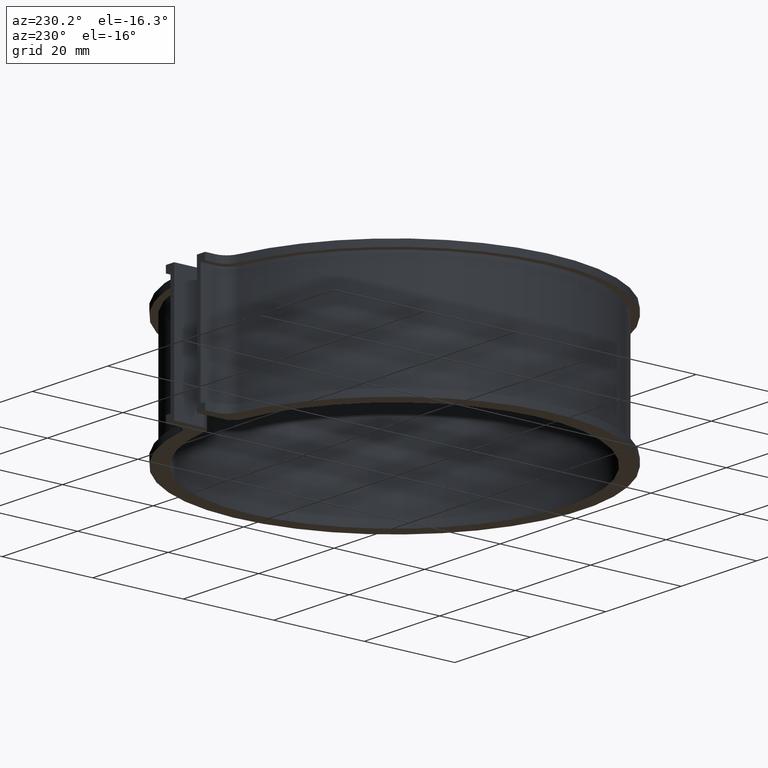
[diagram: clean part render]
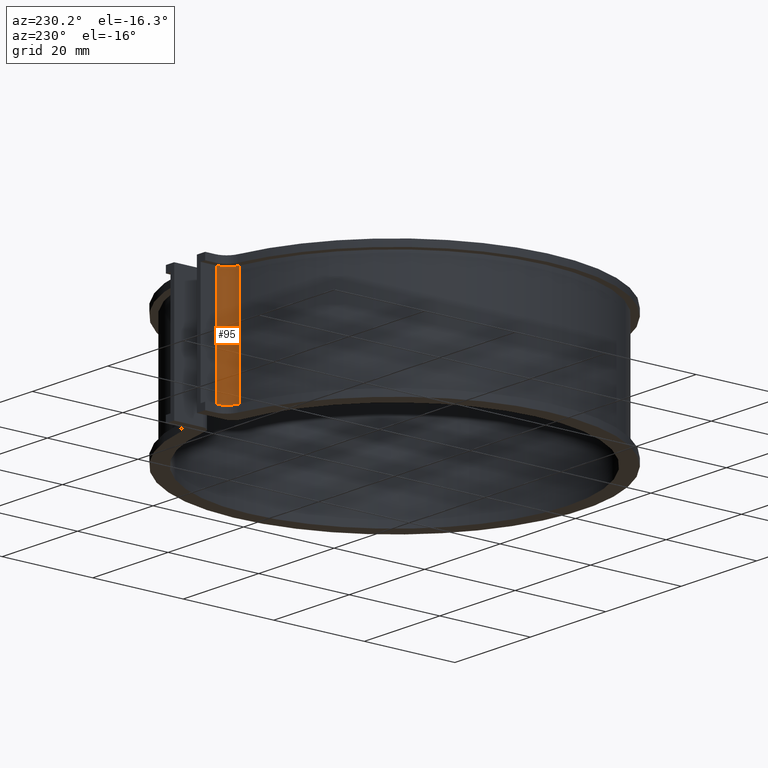
[diagram: same view with one face highlighted and labeled with its STEP entity id]
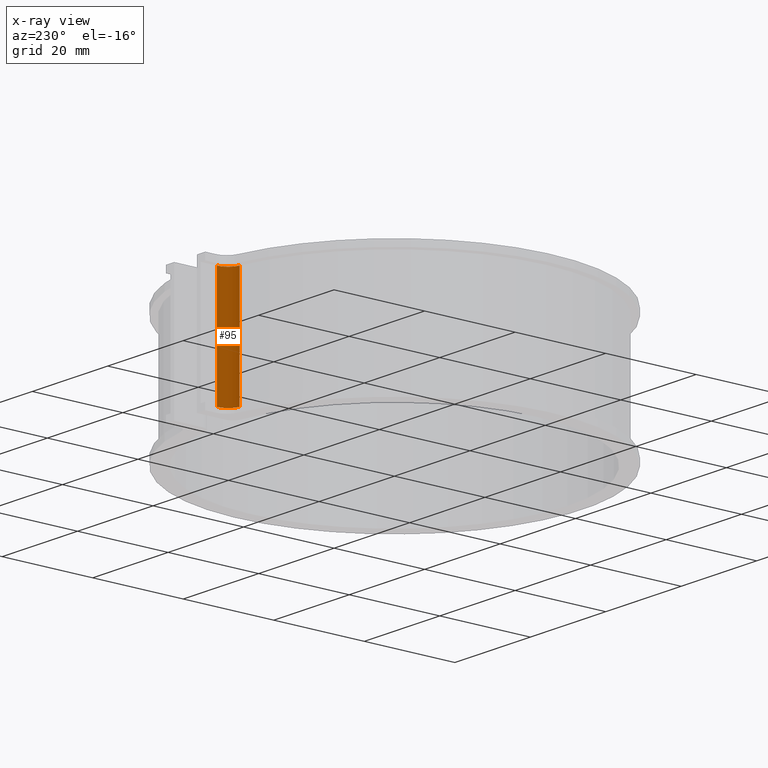
[diagram: x-ray of the same camera — body ghosted, the highlighted face saturated]
A machine part, auxiliary view. The second image highlights one B-rep face of the part: STEP entity #95.
The next image is the same camera in x-ray: the body ghosted, the highlighted face saturated — about 0% of this face is hidden behind the body in this view.
In plain terms, the highlighted cylindrical surface (edge-blend (fillet) strip) has radius 3 mm, axis along (0, 0, -1).
Its self-contained STEP definition (entity closure, byte-faithful):
#95 = ADVANCED_FACE( '', ( #142 ), #143, .F. );
#142 = FACE_OUTER_BOUND( '', #194, .T. );
#143 = CYLINDRICAL_SURFACE( '', #195, 3.00000000000000 );
#194 = EDGE_LOOP( '', ( #386, #387, #388, #389 ) );
#195 = AXIS2_PLACEMENT_3D( '', #390, #391, #392 );
#386 = ORIENTED_EDGE( '', *, *, #430, .F. );
#387 = ORIENTED_EDGE( '', *, *, #446, .T. );
#388 = ORIENTED_EDGE( '', *, *, #496, .T. );
#389 = ORIENTED_EDGE( '', *, *, #489, .F. );
#390 = CARTESIAN_POINT( '', ( -7.00000000000000, 42.5784276365391, -14.0000000000000 ) );
#391 = DIRECTION( '', ( 0.000000000000000, 0.000000000000000, -1.00000000000000 ) );
#392 = DIRECTION( '', ( 1.00000000000000, -6.07153216591882E-017, 0.000000000000000 ) );
#430 = EDGE_CURVE( '', #503, #505, #506, .T. );
#446 = EDGE_CURVE( '', #503, #534, #535, .T. );
#489 = EDGE_CURVE( '', #505, #606, #607, .T. );
#496 = EDGE_CURVE( '', #534, #606, #616, .T. );
#503 = VERTEX_POINT( '', #624 );
#505 = VERTEX_POINT( '', #627 );
#506 = LINE( '', #628, #629 );
#534 = VERTEX_POINT( '', #670 );
#535 = CIRCLE( '', #671, 3.00000000000000 );
#606 = VERTEX_POINT( '', #766 );
#607 = CIRCLE( '', #767, 3.00000000000000 );
#616 = LINE( '', #780, #781 );
#624 = CARTESIAN_POINT( '', ( -4.00000000000000, 42.5784276365391, -12.5000000000000 ) );
#627 = CARTESIAN_POINT( '', ( -4.00000000000000, 42.5784276365391, 12.5000000000000 ) );
#628 = CARTESIAN_POINT( '', ( -4.00000000000000, 42.5784276365391, -14.0000000000000 ) );
#629 = VECTOR( '', #790, 1000.00000000000 );
#670 = CARTESIAN_POINT( '', ( -6.51332560834300, 39.6181661554356, -12.5000000000000 ) );
#671 = AXIS2_PLACEMENT_3D( '', #810, #811, #812 );
#766 = CARTESIAN_POINT( '', ( -6.51332560834300, 39.6181661554356, 12.5000000000000 ) );
#767 = AXIS2_PLACEMENT_3D( '', #891, #892, #893 );
#780 = CARTESIAN_POINT( '', ( -6.51332560834300, 39.6181661554356, -14.0000000000000 ) );
#781 = VECTOR( '', #904, 1000.00000000000 );
#790 = DIRECTION( '', ( 0.000000000000000, 0.000000000000000, 1.00000000000000 ) );
#810 = CARTESIAN_POINT( '', ( -7.00000000000000, 42.5784276365391, -12.5000000000000 ) );
#811 = DIRECTION( '', ( 0.000000000000000, 0.000000000000000, -1.00000000000000 ) );
#812 = DIRECTION( '', ( -1.00000000000000, 0.000000000000000, 0.000000000000000 ) );
#891 = CARTESIAN_POINT( '', ( -7.00000000000000, 42.5784276365391, 12.5000000000000 ) );
#892 = DIRECTION( '', ( 0.000000000000000, 0.000000000000000, -1.00000000000000 ) );
#893 = DIRECTION( '', ( -1.00000000000000, 0.000000000000000, 0.000000000000000 ) );
#904 = DIRECTION( '', ( 0.000000000000000, 0.000000000000000, 1.00000000000000 ) );